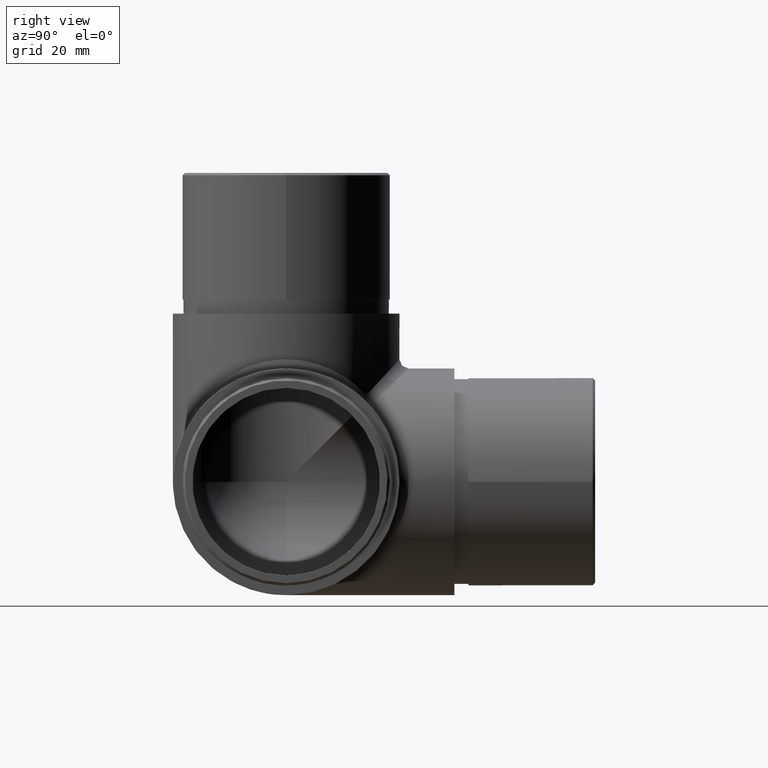
[diagram: clean part render]
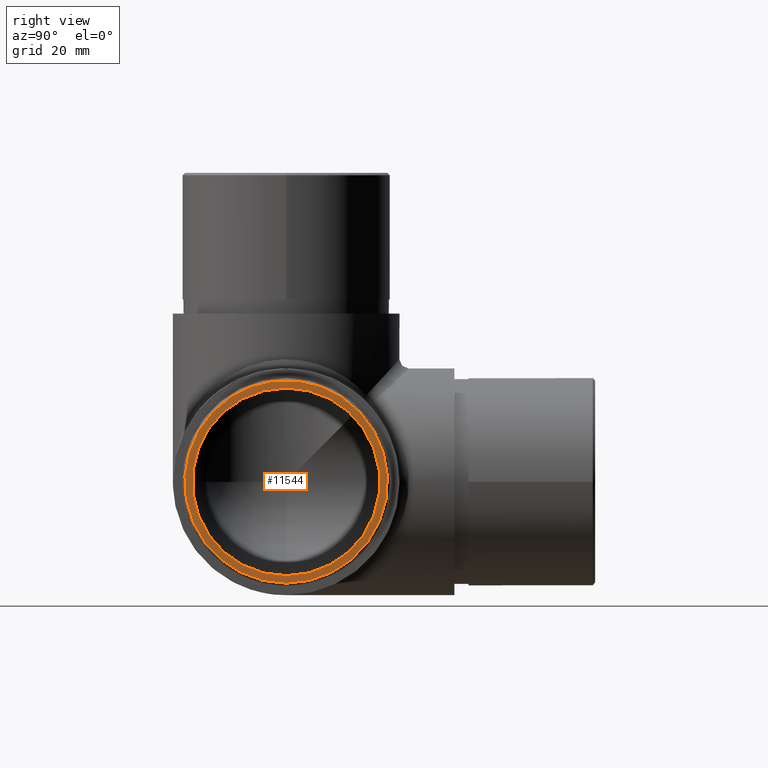
[diagram: same view with one face highlighted and labeled with its STEP entity id]
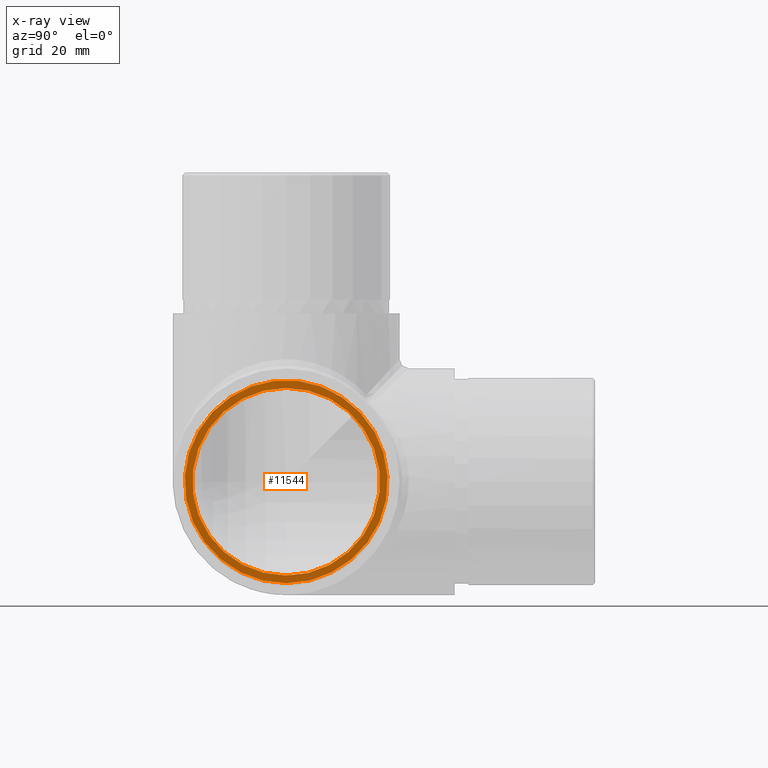
[diagram: x-ray of the same camera — body ghosted, the highlighted face saturated]
A machine part, right view. The second image highlights one B-rep face of the part: STEP entity #11544.
The next image is the same camera in x-ray: the body ghosted, the highlighted face saturated — about 0% of this face is hidden behind the body in this view.
In plain terms, the highlighted planar face has unit normal (1, 0, -0).
Its self-contained STEP definition (entity closure, byte-faithful):
#236 = CIRCLE ( 'NONE', #11511, 20.00000000000000400 ) ;
#281 = EDGE_LOOP ( 'NONE', ( #5558 ) ) ;
#503 = EDGE_CURVE ( 'NONE', #2197, #2197, #236, .T. ) ;
#1147 = CIRCLE ( 'NONE', #5571, 21.59999999999996600 ) ;
#1385 = DIRECTION ( 'NONE',  ( 2.220446049250312600E-016, 0.0000000000000000000, 1.000000000000000000 ) ) ;
#2046 = DIRECTION ( 'NONE',  ( -6.424901762877073400E-016, 0.0000000000000000000, -1.000000000000000000 ) ) ;
#2197 = VERTEX_POINT ( 'NONE', #9723 ) ;
#2874 = FACE_OUTER_BOUND ( 'NONE', #281, .T. ) ;
#2919 = VERTEX_POINT ( 'NONE', #7900 ) ;
#3006 = FACE_BOUND ( 'NONE', #5007, .T. ) ;
#3044 = CARTESIAN_POINT ( 'NONE',  ( 65.84999999999999400, 24.15000000000000200, 24.14999999999997700 ) ) ;
#3386 = DIRECTION ( 'NONE',  ( 1.000000000000000000, 0.0000000000000000000, -2.220446049250312600E-016 ) ) ;
#5007 = EDGE_LOOP ( 'NONE', ( #8789 ) ) ;
#5161 = DIRECTION ( 'NONE',  ( 0.0000000000000000000, 0.0000000000000000000, 1.000000000000000000 ) ) ;
#5485 = PLANE ( 'NONE',  #7013 ) ;
#5558 = ORIENTED_EDGE ( 'NONE', *, *, #10476, .T. ) ;
#5571 = AXIS2_PLACEMENT_3D ( 'NONE', #3044, #9964, #2046 ) ;
#6452 = CARTESIAN_POINT ( 'NONE',  ( 65.84999999999999400, 24.15000000000000200, 24.14999999999997700 ) ) ;
#7013 = AXIS2_PLACEMENT_3D ( 'NONE', #6452, #3386, #1385 ) ;
#7042 = DIRECTION ( 'NONE',  ( -1.000000000000000000, -0.0000000000000000000, 4.440892098500625200E-016 ) ) ;
#7900 = CARTESIAN_POINT ( 'NONE',  ( 65.84999999999998000, 24.15000000000000200, 2.550000000000010500 ) ) ;
#8789 = ORIENTED_EDGE ( 'NONE', *, *, #503, .T. ) ;
#9723 = CARTESIAN_POINT ( 'NONE',  ( 65.84999999999999400, 24.15000000000000200, 44.14999999999998400 ) ) ;
#9964 = DIRECTION ( 'NONE',  ( 1.000000000000000000, 0.0000000000000000000, -4.440892098500625200E-016 ) ) ;
#10476 = EDGE_CURVE ( 'NONE', #2919, #2919, #1147, .T. ) ;
#11146 = CARTESIAN_POINT ( 'NONE',  ( 65.84999999999999400, 24.15000000000000200, 24.14999999999997700 ) ) ;
#11511 = AXIS2_PLACEMENT_3D ( 'NONE', #11146, #7042, #5161 ) ;
#11544 = ADVANCED_FACE ( 'NONE', ( #2874, #3006 ), #5485, .T. ) ;